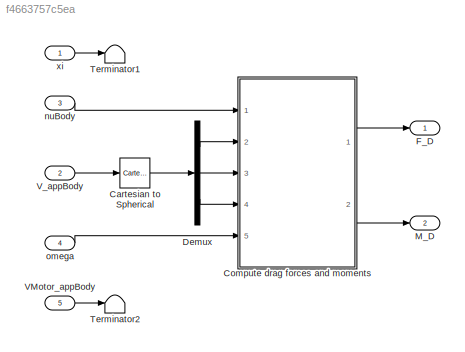
MODEL slx_f4663757c5ea
KIND model
CONFIG AbsTol = auto
CONFIG EnableMultiTasking = on
CONFIG FixedStep = auto
CONFIG MaxStep = auto
CONFIG MinStep = auto
CONFIG RelTol = 1e-3
CONFIG SampleTimeConstraint = Unconstrained
CONFIG SolverName = VariableStepAuto
CONFIG StartTime = 0.0
CONFIG StopTime = 10.0
BLOCK [Reference] Cartesian to Spherical  REF=QuaternionLibrary/Cartesian
to Spherical
  Ports = [1, 1]
  SourceBlock = QuaternionLibrary/Cartesian\nto Spherical
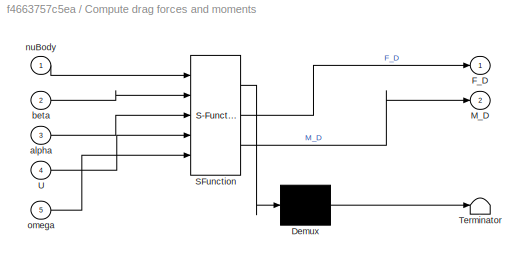
BLOCK [SubSystem] Compute drag forces and moments
  ErrorFcn = Stateflow.Translate.translate
  PermitHierarchicalResolution = ExplicitOnly
  Ports = [5, 2]
  RequestExecContextInheritance = off
  SFBlockType = MATLAB Function
  TreatAsAtomicUnit = on
BLOCK [Demux] Compute drag forces and moments/ Demux 
  Outputs = 1
  Ports = [1, 1]
BLOCK [S-Function] Compute drag forces and moments/ SFunction 
  EnableBusSupport = on
  FunctionName = sf_sfun
  Parameters = Aero,Uav
  PortCounts = [5 3]
  Ports = [5, 3]
  SFcnIsStateOwnerBlock = off
  SFunctionDeploymentMode = off
  Tag = Stateflow S-Function 2
BLOCK [Terminator] Compute drag forces and moments/ Terminator 
BLOCK [Outport] Compute drag forces and moments/F_D
  VectorParamsAs1DForOutWhenUnconnected = off
BLOCK [Outport] Compute drag forces and moments/M_D
  Port = 2
  VectorParamsAs1DForOutWhenUnconnected = off
BLOCK [Inport] Compute drag forces and moments/U
  Port = 4
BLOCK [Inport] Compute drag forces and moments/alpha
  Port = 3
BLOCK [Inport] Compute drag forces and moments/beta
  Port = 2
BLOCK [Inport] Compute drag forces and moments/nuBody
BLOCK [Inport] Compute drag forces and moments/omega
  Port = 5
BLOCK [Demux] Demux
  Outputs = 3
  Ports = [1, 3]
BLOCK [Outport] F_D
  Unit = N
  VectorParamsAs1DForOutWhenUnconnected = off
BLOCK [Outport] M_D
  Port = 2
  Unit = N*m
  VectorParamsAs1DForOutWhenUnconnected = off
BLOCK [Terminator] Terminator1
BLOCK [Terminator] Terminator2
BLOCK [Inport] VMotor_appBody
  Port = 5
  PortDimensions = [3,Uav.N_ROTORS]
  Unit = m/s
BLOCK [Inport] V_appBody
  Port = 2
  PortDimensions = 3
  Unit = m/s
BLOCK [Inport] nuBody
  Port = 3
  PortDimensions = 3
  Unit = rad/s
BLOCK [Inport] omega
  Port = 4
  PortDimensions = Uav.N_ROTORS
  Unit = rad/s
BLOCK [Inport] xi
  PortDimensions = 3
  Unit = m
LINE Cartesian to Spherical:1 -> Demux:1
LINE Compute drag forces and moments:1 -> F_D:1
LINE Compute drag forces and moments:2 -> M_D:1
LINE Demux:1 -> Compute drag forces and moments:2
LINE Demux:2 -> Compute drag forces and moments:3
LINE Demux:3 -> Compute drag forces and moments:4
LINE VMotor_appBody:1 -> Terminator2:1
LINE V_appBody:1 -> Cartesian to Spherical:1
LINE nuBody:1 -> Compute drag forces and moments:1
LINE omega:1 -> Compute drag forces and moments:5
LINE xi:1 -> Terminator1:1
CHART Compute drag forces and moments states=1 transitions=1
  STATE_LABEL 'eML_blk_kernel()'
  STATE_LABEL 'SCRIPT:\nfunction [F_D, M_D] = computeDrag( nuBody, beta, alpha, U, ...\n                                   omega, Uav, Aero )\n%#codegen\n% Outputs\nF_D = zeros(3,1);\nM_D = zeros(3,1);\n\n% Forces\nCz1 = dot( Aero.Cz1.coefs, [sin(alpha), 1] );\nCx1 = dot( Aero.Cx1.coefs, [cos(alpha), cos(3*alpha), cos(7*alpha)] );\nfAeroz = -0.5 .* Uav.RHO_AIR .* U^2 .* Cz1 * Uav.A_UAV;\nfAeroxy = -0.5 .* Uav.RHO_AIR .* U^2...<+264ch>'
CHART  states=0 transitions=0
